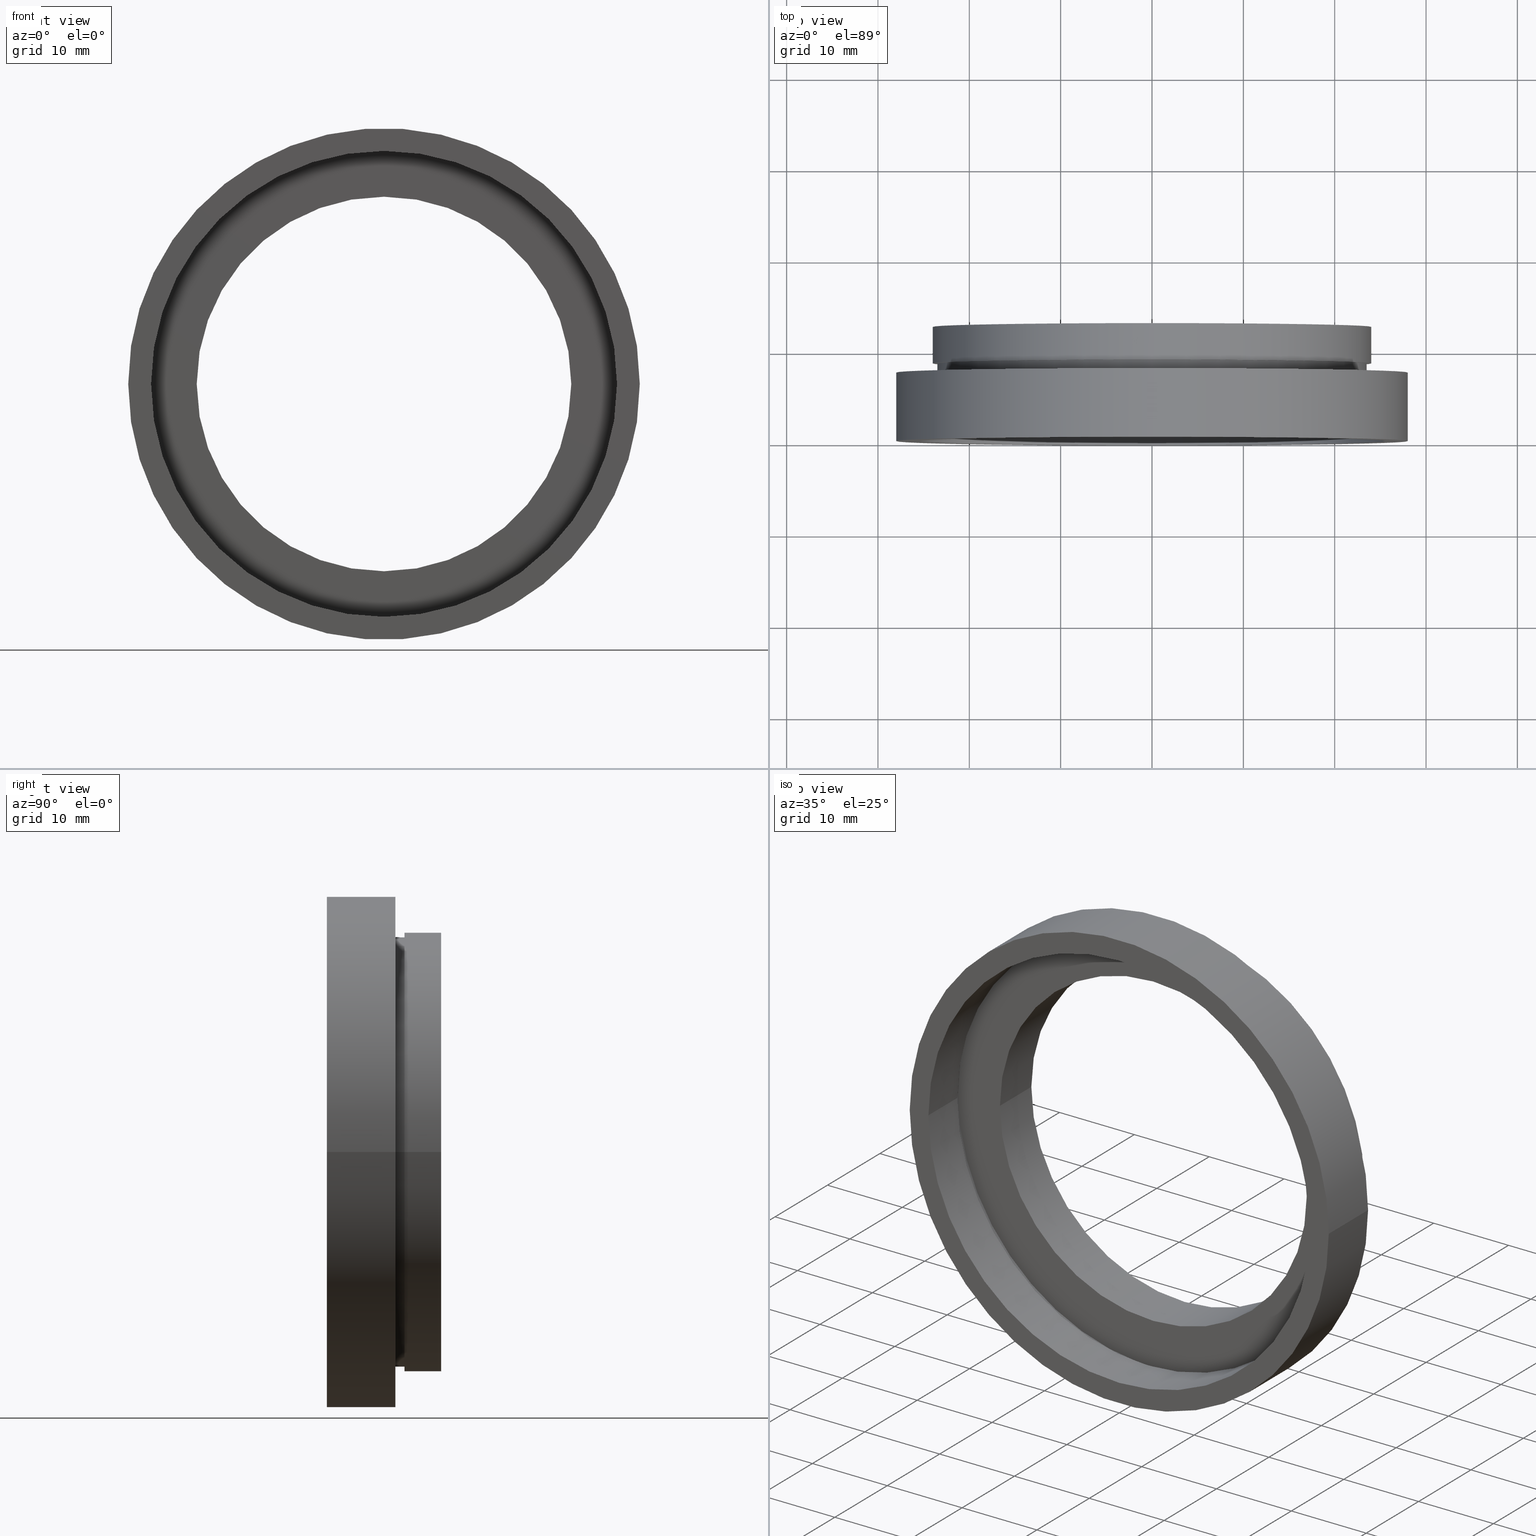
[diagram: canonical four-view strip — front | top / right | iso, engineering-drawing reading convention]
A machine part, canonical four-view strip (front | top / right | iso — engineering-drawing reading convention). The complete STEP part file that produces these views, byte-faithful:
ISO-10303-21;
HEADER;
FILE_DESCRIPTION (( 'STEP AP214' ),
    '1' );
FILE_NAME ('504006.STEP',
    '2019-09-30T06:35:52',
    ( 'user' ),
    ( '΢���й�' ),
    'SwSTEP 2.0',
    'SolidWorks 2016',
    '' );
FILE_SCHEMA (( 'AUTOMOTIVE_DESIGN' ));
ENDSEC;

DATA;
#1 = PLANE ( 'NONE',  #36 ) ;
#2 = ADVANCED_FACE ( 'NONE', ( #270 ), #376, .F. ) ;
#3 = EDGE_CURVE ( 'NONE', #508, #568, #146, .T. ) ;
#4 = AXIS2_PLACEMENT_3D ( 'NONE', #537, #546, #289 ) ;
#5 = ORIENTED_EDGE ( 'NONE', *, *, #396, .F. ) ;
#6 = VERTEX_POINT ( 'NONE', #135 ) ;
#7 = EDGE_LOOP ( 'NONE', ( #294, #451, #469, #536 ) ) ;
#8 = CYLINDRICAL_SURFACE ( 'NONE', #502, 20.50000000000000000 ) ;
#9 =( NAMED_UNIT ( * ) SI_UNIT ( $, .STERADIAN. ) SOLID_ANGLE_UNIT ( ) );
#10 = CARTESIAN_POINT ( 'NONE',  ( 0.0000000000000000000, 16.88601823708207700, 0.0000000000000000000 ) ) ;
#11 = CARTESIAN_POINT ( 'NONE',  ( -23.50000000000000400, 16.88601823708207300, 0.0000000000000000000 ) ) ;
#12 = AXIS2_PLACEMENT_3D ( 'NONE', #605, #163, #102 ) ;
#13 = COLOUR_RGB ( '',1.000000000000000000, 1.000000000000000000, 1.000000000000000000 ) ;
#14 = FILL_AREA_STYLE ('',( #353 ) ) ;
#15 =( GEOMETRIC_REPRESENTATION_CONTEXT ( 3 ) GLOBAL_UNCERTAINTY_ASSIGNED_CONTEXT ( ( #55 ) ) GLOBAL_UNIT_ASSIGNED_CONTEXT ( ( #35, #439, #323 ) ) REPRESENTATION_CONTEXT ( 'NONE', 'WORKASPACE' ) );
#16 = CARTESIAN_POINT ( 'NONE',  ( 0.0000000000000000000, 16.88601823708207700, 0.0000000000000000000 ) ) ;
#17 = ORIENTED_EDGE ( 'NONE', *, *, #617, .F. ) ;
#18 = DIRECTION ( 'NONE',  ( -1.000000000000000000, -1.360567432138672100E-016, 0.0000000000000000000 ) ) ;
#19 = ORIENTED_EDGE ( 'NONE', *, *, #156, .T. ) ;
#20 =( NAMED_UNIT ( * ) SI_UNIT ( $, .STERADIAN. ) SOLID_ANGLE_UNIT ( ) );
#21 =( NAMED_UNIT ( * ) PLANE_ANGLE_UNIT ( ) SI_UNIT ( $, .RADIAN. ) );
#22 =( LENGTH_UNIT ( ) NAMED_UNIT ( * ) SI_UNIT ( .MILLI., .METRE. ) );
#23 = FACE_OUTER_BOUND ( 'NONE', #52, .T. ) ;
#24 =( GEOMETRIC_REPRESENTATION_CONTEXT ( 3 ) GLOBAL_UNCERTAINTY_ASSIGNED_CONTEXT ( ( #213 ) ) GLOBAL_UNIT_ASSIGNED_CONTEXT ( ( #498, #21, #307 ) ) REPRESENTATION_CONTEXT ( 'NONE', 'WORKASPACE' ) );
#25 =( NAMED_UNIT ( * ) PLANE_ANGLE_UNIT ( ) SI_UNIT ( $, .RADIAN. ) );
#26 = SURFACE_STYLE_USAGE ( .BOTH. , #30 ) ;
#27 = CYLINDRICAL_SURFACE ( 'NONE', #460, 24.00000000000000400 ) ;
#28 =( NAMED_UNIT ( * ) SI_UNIT ( $, .STERADIAN. ) SOLID_ANGLE_UNIT ( ) );
#29 = EDGE_CURVE ( 'NONE', #568, #508, #371, .T. ) ;
#30 = SURFACE_SIDE_STYLE ('',( #492 ) ) ;
#31 = CARTESIAN_POINT ( 'NONE',  ( 25.50000000000000400, 5.499999999999998200, 3.122849337825751000E-015 ) ) ;
#32 = SURFACE_STYLE_FILL_AREA ( #57 ) ;
#33 = FILL_AREA_STYLE_COLOUR ( '', #56 ) ;
#34 = AXIS2_PLACEMENT_3D ( 'NONE', #286, #553, #45 ) ;
#35 =( LENGTH_UNIT ( ) NAMED_UNIT ( * ) SI_UNIT ( .MILLI., .METRE. ) );
#36 = AXIS2_PLACEMENT_3D ( 'NONE', #585, #193, #191 ) ;
#37 = EDGE_CURVE ( 'NONE', #453, #356, #370, .T. ) ;
#38 = CARTESIAN_POINT ( 'NONE',  ( 0.0000000000000000000, 16.88601823708207700, 0.0000000000000000000 ) ) ;
#39 = FILL_AREA_STYLE_COLOUR ( '', #161 ) ;
#40 = CARTESIAN_POINT ( 'NONE',  ( -24.00000000000000400, 12.49999999999999300, 0.0000000000000000000 ) ) ;
#41 = SURFACE_STYLE_USAGE ( .BOTH. , #197 ) ;
#42 = DIRECTION ( 'NONE',  ( -1.224646799147351000E-016, 1.000000000000000000, -0.0000000000000000000 ) ) ;
#43 = CARTESIAN_POINT ( 'NONE',  ( 25.50000000000000400, 16.88601823708208000, 3.122849337825751000E-015 ) ) ;
#44 = FILL_AREA_STYLE_COLOUR ( '', #49 ) ;
#45 = DIRECTION ( 'NONE',  ( -1.000000000000000000, -1.329290019905599200E-016, 0.0000000000000000000 ) ) ;
#46 = EDGE_LOOP ( 'NONE', ( #277, #493 ) ) ;
#47 = EDGE_LOOP ( 'NONE', ( #231, #178, #200, #531 ) ) ;
#48 = ADVANCED_FACE ( 'NONE', ( #136, #372 ), #556, .F. ) ;
#49 = COLOUR_RGB ( '',1.000000000000000000, 1.000000000000000000, 1.000000000000000000 ) ;
#50 = CARTESIAN_POINT ( 'NONE',  ( 0.0000000000000000000, 16.88601823708207700, 0.0000000000000000000 ) ) ;
#51 = PRESENTATION_LAYER_ASSIGNMENT (  '', '', ( #311 ) ) ;
#52 = EDGE_LOOP ( 'NONE', ( #507, #293, #326, #429 ) ) ;
#53 = CARTESIAN_POINT ( 'NONE',  ( 28.00000000000000400, 7.500000000000000000, 3.429011037612589700E-015 ) ) ;
#54 = DIRECTION ( 'NONE',  ( -1.000000000000000000, -1.360567432138672100E-016, 0.0000000000000000000 ) ) ;
#55 = UNCERTAINTY_MEASURE_WITH_UNIT (LENGTH_MEASURE( 1.000000000000000100E-005 ), #35, 'distance_accuracy_value', 'NONE');
#56 = COLOUR_RGB ( '',1.000000000000000000, 1.000000000000000000, 1.000000000000000000 ) ;
#57 = FILL_AREA_STYLE ('',( #187 ) ) ;
#58 = FILL_AREA_STYLE ('',( #33 ) ) ;
#59 = VERTEX_POINT ( 'NONE', #226 ) ;
#60 = ORIENTED_EDGE ( 'NONE', *, *, #252, .T. ) ;
#61 = CARTESIAN_POINT ( 'NONE',  ( -24.00000000000000400, 16.88601823708207300, 0.0000000000000000000 ) ) ;
#62 = VERTEX_POINT ( 'NONE', #295 ) ;
#63 = AXIS2_PLACEMENT_3D ( 'NONE', #544, #304, #284 ) ;
#64 =( LENGTH_UNIT ( ) NAMED_UNIT ( * ) SI_UNIT ( .MILLI., .METRE. ) );
#65 = EDGE_CURVE ( 'NONE', #209, #210, #195, .T. ) ;
#66 = AXIS2_PLACEMENT_3D ( 'NONE', #170, #271, #241 ) ;
#67 = SURFACE_STYLE_USAGE ( .BOTH. , #348 ) ;
#68 =( NAMED_UNIT ( * ) PLANE_ANGLE_UNIT ( ) SI_UNIT ( $, .RADIAN. ) );
#69 = ORIENTED_EDGE ( 'NONE', *, *, #156, .F. ) ;
#70 = CARTESIAN_POINT ( 'NONE',  ( 20.50000000000000000, 16.88601823708208000, 2.510525938252074500E-015 ) ) ;
#71 = DIRECTION ( 'NONE',  ( -1.000000000000000000, -1.224646799147351200E-016, 0.0000000000000000000 ) ) ;
#72 = CARTESIAN_POINT ( 'NONE',  ( 23.50000000000000400, 7.499999999999999100, 2.877919977996280700E-015 ) ) ;
#73 = UNCERTAINTY_MEASURE_WITH_UNIT (LENGTH_MEASURE( 1.000000000000000100E-005 ), #64, 'distance_accuracy_value', 'NONE');
#74 = AXIS2_PLACEMENT_3D ( 'NONE', #16, #139, #18 ) ;
#75 = DIRECTION ( 'NONE',  ( -1.000000000000000000, -1.329290019905599200E-016, 0.0000000000000000000 ) ) ;
#76 = ORIENTED_EDGE ( 'NONE', *, *, #192, .T. ) ;
#77 = DIRECTION ( 'NONE',  ( -1.000000000000000000, -1.476360405086644100E-016, 0.0000000000000000000 ) ) ;
#78 = SURFACE_STYLE_FILL_AREA ( #443 ) ;
#79 = CARTESIAN_POINT ( 'NONE',  ( 1.271920398992858200E-015, 6.499999999999995600, 0.0000000000000000000 ) ) ;
#80 = DIRECTION ( 'NONE',  ( -1.224646799147351000E-016, 1.000000000000000000, -0.0000000000000000000 ) ) ;
#81 = ORIENTED_EDGE ( 'NONE', *, *, #485, .F. ) ;
#82 = CARTESIAN_POINT ( 'NONE',  ( 1.394385078907593400E-015, 5.499999999999994700, 0.0000000000000000000 ) ) ;
#83 = ORIENTED_EDGE ( 'NONE', *, *, #313, .T. ) ;
#84 = DIRECTION ( 'NONE',  ( -1.224646799147351000E-016, 1.000000000000000000, -0.0000000000000000000 ) ) ;
#85 = DIRECTION ( 'NONE',  ( -1.000000000000000000, -1.445602896647338900E-016, 0.0000000000000000000 ) ) ;
#86 = FILL_AREA_STYLE_COLOUR ( '', #120 ) ;
#87 = DIRECTION ( 'NONE',  ( -1.224646799147351000E-016, 1.000000000000000000, -0.0000000000000000000 ) ) ;
#88 = DIRECTION ( 'NONE',  ( -1.000000000000000000, -1.476360405086644100E-016, 0.0000000000000000000 ) ) ;
#89 = AXIS2_PLACEMENT_3D ( 'NONE', #541, #87, #171 ) ;
#90 = VERTEX_POINT ( 'NONE', #40 ) ;
#91 = ADVANCED_FACE ( 'NONE', ( #382, #283 ), #216, .F. ) ;
#92 = CARTESIAN_POINT ( 'NONE',  ( 24.00000000000000400, 16.88601823708208000, 2.939152317953648300E-015 ) ) ;
#93 = VECTOR ( 'NONE', #589, 1000.000000000000000 ) ;
#94 = CIRCLE ( 'NONE', #151, 24.00000000000000400 ) ;
#95 = AXIS2_PLACEMENT_3D ( 'NONE', #251, #603, #409 ) ;
#96 = FACE_BOUND ( 'NONE', #259, .T. ) ;
#97 = EDGE_CURVE ( 'NONE', #596, #442, #280, .T. ) ;
#98 = ORIENTED_EDGE ( 'NONE', *, *, #97, .T. ) ;
#99 = DIRECTION ( 'NONE',  ( -1.224646799147351000E-016, 1.000000000000000000, -0.0000000000000000000 ) ) ;
#100 = VECTOR ( 'NONE', #84, 1000.000000000000000 ) ;
#101 = LINE ( 'NONE', #11, #100 ) ;
#102 = DIRECTION ( 'NONE',  ( -1.000000000000000000, -1.239088197126290600E-016, 0.0000000000000000000 ) ) ;
#103 = DIRECTION ( 'NONE',  ( -1.000000000000000000, -1.445602896647338900E-016, 0.0000000000000000000 ) ) ;
#104 = AXIS2_PLACEMENT_3D ( 'NONE', #148, #447, #527 ) ;
#105 = EDGE_LOOP ( 'NONE', ( #476, #559, #19, #112 ) ) ;
#106 = AXIS2_PLACEMENT_3D ( 'NONE', #488, #580, #257 ) ;
#107 = FACE_OUTER_BOUND ( 'NONE', #237, .T. ) ;
#108 = DIRECTION ( 'NONE',  ( -1.224646799147351000E-016, 1.000000000000000000, -0.0000000000000000000 ) ) ;
#109 = CIRCLE ( 'NONE', #122, 25.50000000000000000 ) ;
#110 = EDGE_CURVE ( 'NONE', #336, #59, #281, .T. ) ;
#111 = ORIENTED_EDGE ( 'NONE', *, *, #547, .F. ) ;
#112 = ORIENTED_EDGE ( 'NONE', *, *, #228, .T. ) ;
#113 = FILL_AREA_STYLE ('',( #239 ) ) ;
#114 = CYLINDRICAL_SURFACE ( 'NONE', #517, 28.00000000000000400 ) ;
#115 = DIRECTION ( 'NONE',  ( -1.000000000000000000, -1.329290019905599200E-016, 0.0000000000000000000 ) ) ;
#116 = AXIS2_PLACEMENT_3D ( 'NONE', #526, #490, #606 ) ;
#117 = SURFACE_SIDE_STYLE ('',( #32 ) ) ;
#118 = FACE_BOUND ( 'NONE', #563, .T. ) ;
#119 = CARTESIAN_POINT ( 'NONE',  ( 24.00000000000000400, 8.500000000000000000, 2.939152317953648300E-015 ) ) ;
#120 = COLOUR_RGB ( '',1.000000000000000000, 1.000000000000000000, 1.000000000000000000 ) ;
#121 = APPLICATION_CONTEXT ( 'automotive_design' ) ;
#122 = AXIS2_PLACEMENT_3D ( 'NONE', #496, #145, #71 ) ;
#123 = VERTEX_POINT ( 'NONE', #223 ) ;
#124 = EDGE_CURVE ( 'NONE', #508, #317, #393, .T. ) ;
#125 = VERTEX_POINT ( 'NONE', #417 ) ;
#126 = ORIENTED_EDGE ( 'NONE', *, *, #279, .T. ) ;
#127 = APPLICATION_CONTEXT ( 'automotive_design' ) ;
#128 = CYLINDRICAL_SURFACE ( 'NONE', #155, 26.10000000000000100 ) ;
#129 = CIRCLE ( 'NONE', #63, 26.10000000000000100 ) ;
#130 = DIRECTION ( 'NONE',  ( -1.224646799147351000E-016, 1.000000000000000000, -0.0000000000000000000 ) ) ;
#131 = FACE_OUTER_BOUND ( 'NONE', #7, .T. ) ;
#132 = CARTESIAN_POINT ( 'NONE',  ( 0.0000000000000000000, 16.88601823708207700, 0.0000000000000000000 ) ) ;
#133 = DIRECTION ( 'NONE',  ( -1.224646799147351000E-016, 1.000000000000000000, -0.0000000000000000000 ) ) ;
#134 = AXIS2_PLACEMENT_3D ( 'NONE', #82, #302, #75 ) ;
#135 = CARTESIAN_POINT ( 'NONE',  ( 20.50000000000000000, 6.500000000000000000, 2.510525938252074500E-015 ) ) ;
#136 = FACE_BOUND ( 'NONE', #521, .T. ) ;
#137 = LINE ( 'NONE', #545, #390 ) ;
#138 = ADVANCED_FACE ( 'NONE', ( #23 ), #406, .F. ) ;
#139 = DIRECTION ( 'NONE',  ( -1.224646799147351000E-016, 1.000000000000000000, -0.0000000000000000000 ) ) ;
#140 =( LENGTH_UNIT ( ) NAMED_UNIT ( * ) SI_UNIT ( .MILLI., .METRE. ) );
#141 = PRODUCT_DEFINITION ( 'δ֪', '', #167, #560 ) ;
#142 = VERTEX_POINT ( 'NONE', #212 ) ;
#143 = EDGE_CURVE ( 'NONE', #317, #534, #392, .T. ) ;
#144 = ORIENTED_EDGE ( 'NONE', *, *, #362, .F. ) ;
#145 = DIRECTION ( 'NONE',  ( -1.224646799147351000E-016, 1.000000000000000000, -0.0000000000000000000 ) ) ;
#146 = CIRCLE ( 'NONE', #464, 23.50000000000000400 ) ;
#147 = PRODUCT_DEFINITION_SHAPE ( 'NONE', 'NONE',  #141 ) ;
#148 = CARTESIAN_POINT ( 'NONE',  ( 25.50000000000000400, 5.499999999999999100, 0.0000000000000000000 ) ) ;
#149 = DIRECTION ( 'NONE',  ( -1.000000000000000000, -1.239088197126290600E-016, 0.0000000000000000000 ) ) ;
#150 = FACE_OUTER_BOUND ( 'NONE', #46, .T. ) ;
#151 = AXIS2_PLACEMENT_3D ( 'NONE', #495, #340, #85 ) ;
#152 = CARTESIAN_POINT ( 'NONE',  ( 26.10000000000000100, 16.88601823708208000, 3.196328145774592300E-015 ) ) ;
#153 = FACE_OUTER_BOUND ( 'NONE', #105, .T. ) ;
#154 = EDGE_LOOP ( 'NONE', ( #478, #81, #379, #611 ) ) ;
#155 = AXIS2_PLACEMENT_3D ( 'NONE', #467, #269, #274 ) ;
#156 = EDGE_CURVE ( 'NONE', #59, #210, #137, .T. ) ;
#157 = CIRCLE ( 'NONE', #220, 20.50000000000000000 ) ;
#158 = CYLINDRICAL_SURFACE ( 'NONE', #89, 25.50000000000000400 ) ;
#159 = PRESENTATION_STYLE_ASSIGNMENT (( #245 ) ) ;
#160 = CARTESIAN_POINT ( 'NONE',  ( 1.026991039163387900E-015, 8.499999999999996400, 0.0000000000000000000 ) ) ;
#161 = COLOUR_RGB ( '',1.000000000000000000, 1.000000000000000000, 1.000000000000000000 ) ;
#162 = LINE ( 'NONE', #43, #204 ) ;
#163 = DIRECTION ( 'NONE',  ( -1.224646799147351000E-016, 1.000000000000000000, -0.0000000000000000000 ) ) ;
#164 = STYLED_ITEM ( 'NONE', ( #322 ), #459 ) ;
#165 = EDGE_LOOP ( 'NONE', ( #306, #505 ) ) ;
#166 = ORIENTED_EDGE ( 'NONE', *, *, #3, .F. ) ;
#167 = PRODUCT_DEFINITION_FORMATION_WITH_SPECIFIED_SOURCE ( '�κ�', '', #608, .NOT_KNOWN. ) ;
#168 = CARTESIAN_POINT ( 'NONE',  ( 23.50000000000000400, 8.500000000000000000, 2.877919977996280700E-015 ) ) ;
#169 = EDGE_CURVE ( 'NONE', #394, #596, #235, .T. ) ;
#170 = CARTESIAN_POINT ( 'NONE',  ( 1.149455719078123100E-015, 7.499999999999996400, 0.0000000000000000000 ) ) ;
#171 = DIRECTION ( 'NONE',  ( -1.000000000000000000, -1.360567432138672100E-016, 0.0000000000000000000 ) ) ;
#172 = SURFACE_STYLE_FILL_AREA ( #586 ) ;
#173 = VECTOR ( 'NONE', #218, 1000.000000000000000 ) ;
#174 = CARTESIAN_POINT ( 'NONE',  ( 24.00000000000000400, 12.50000000000000000, 2.939152317953648300E-015 ) ) ;
#175 = DIRECTION ( 'NONE',  ( -1.000000000000000000, -8.462065736472229800E-017, 0.0000000000000000000 ) ) ;
#176 = CIRCLE ( 'NONE', #432, 20.50000000000000000 ) ;
#177 = DIRECTION ( 'NONE',  ( -1.224646799147351000E-016, 1.000000000000000000, -0.0000000000000000000 ) ) ;
#178 = ORIENTED_EDGE ( 'NONE', *, *, #169, .T. ) ;
#179 = CIRCLE ( 'NONE', #512, 25.50000000000000400 ) ;
#180 = PLANE ( 'NONE',  #116 ) ;
#181 = FACE_OUTER_BOUND ( 'NONE', #338, .T. ) ;
#182 = DIRECTION ( 'NONE',  ( -1.224646799147351000E-016, 1.000000000000000000, -0.0000000000000000000 ) ) ;
#183 = ADVANCED_FACE ( 'NONE', ( #408 ), #360, .T. ) ;
#184 = ORIENTED_EDGE ( 'NONE', *, *, #455, .T. ) ;
#185 = STYLED_ITEM ( 'NONE', ( #333 ), #621 ) ;
#186 = ORIENTED_EDGE ( 'NONE', *, *, #265, .T. ) ;
#187 = FILL_AREA_STYLE_COLOUR ( '', #13 ) ;
#188 = ADVANCED_FACE ( 'NONE', ( #378, #401 ), #597, .F. ) ;
#189 = AXIS2_PLACEMENT_3D ( 'NONE', #300, #207, #198 ) ;
#190 = EDGE_CURVE ( 'NONE', #394, #142, #361, .T. ) ;
#191 = DIRECTION ( 'NONE',  ( -1.000000000000000000, -1.224646799147351000E-016, 0.0000000000000000000 ) ) ;
#192 = EDGE_CURVE ( 'NONE', #6, #123, #398, .T. ) ;
#193 = DIRECTION ( 'NONE',  ( -1.224646799147351000E-016, 1.000000000000000000, 0.0000000000000000000 ) ) ;
#194 = FACE_OUTER_BOUND ( 'NONE', #238, .T. ) ;
#195 = CIRCLE ( 'NONE', #592, 25.50000000000000400 ) ;
#196 = VECTOR ( 'NONE', #233, 1000.000000000000000 ) ;
#197 = SURFACE_SIDE_STYLE ('',( #172 ) ) ;
#198 = DIRECTION ( 'NONE',  ( -1.000000000000000000, -1.239088197126290600E-016, 0.0000000000000000000 ) ) ;
#199 = PRESENTATION_LAYER_ASSIGNMENT (  '', '', ( #164 ) ) ;
#200 = ORIENTED_EDGE ( 'NONE', *, *, #455, .F. ) ;
#201 = ORIENTED_EDGE ( 'NONE', *, *, #222, .F. ) ;
#202 = CARTESIAN_POINT ( 'NONE',  ( -28.00000000000000400, 16.88601823708207300, 0.0000000000000000000 ) ) ;
#203 = PRODUCT_RELATED_PRODUCT_CATEGORY ( 'part', '', ( #608 ) ) ;
#204 = VECTOR ( 'NONE', #414, 1000.000000000000000 ) ;
#205 = EDGE_CURVE ( 'NONE', #336, #209, #162, .T. ) ;
#206 = CARTESIAN_POINT ( 'NONE',  ( 5.371323195044473300E-016, 12.49999999999999600, 0.0000000000000000000 ) ) ;
#207 = DIRECTION ( 'NONE',  ( -1.224646799147351000E-016, 1.000000000000000000, -0.0000000000000000000 ) ) ;
#208 = DIRECTION ( 'NONE',  ( -1.000000000000000000, -1.224646799147351000E-016, 0.0000000000000000000 ) ) ;
#209 = VERTEX_POINT ( 'NONE', #31 ) ;
#210 = VERTEX_POINT ( 'NONE', #619 ) ;
#211 = DIRECTION ( 'NONE',  ( -1.000000000000000000, -1.476360405086644100E-016, 0.0000000000000000000 ) ) ;
#212 = CARTESIAN_POINT ( 'NONE',  ( -27.99999999999999600, -6.898457989566196800E-015, 0.0000000000000000000 ) ) ;
#213 = UNCERTAINTY_MEASURE_WITH_UNIT (LENGTH_MEASURE( 1.000000000000000100E-005 ), #498, 'distance_accuracy_value', 'NONE');
#214 = ORIENTED_EDGE ( 'NONE', *, *, #485, .T. ) ;
#215 = LINE ( 'NONE', #349, #332 ) ;
#216 = PLANE ( 'NONE',  #225 ) ;
#217 = CARTESIAN_POINT ( 'NONE',  ( -24.00000000000000400, 8.499999999999992900, 0.0000000000000000000 ) ) ;
#218 = DIRECTION ( 'NONE',  ( -1.224646799147351000E-016, 1.000000000000000000, -0.0000000000000000000 ) ) ;
#219 = PRESENTATION_LAYER_ASSIGNMENT (  '', '', ( #185 ) ) ;
#220 = AXIS2_PLACEMENT_3D ( 'NONE', #325, #452, #261 ) ;
#221 = CARTESIAN_POINT ( 'NONE',  ( 5.371323195044473300E-016, 12.49999999999999600, 0.0000000000000000000 ) ) ;
#222 = EDGE_CURVE ( 'NONE', #534, #317, #351, .T. ) ;
#223 = CARTESIAN_POINT ( 'NONE',  ( 20.50000000000000000, 12.49999999999999800, 2.510525938252074500E-015 ) ) ;
#224 = ORIENTED_EDGE ( 'NONE', *, *, #65, .T. ) ;
#225 = AXIS2_PLACEMENT_3D ( 'NONE', #497, #454, #208 ) ;
#226 = CARTESIAN_POINT ( 'NONE',  ( -25.49999999999999600, -6.592296289779359700E-015, 0.0000000000000000000 ) ) ;
#227 =( NAMED_UNIT ( * ) PLANE_ANGLE_UNIT ( ) SI_UNIT ( $, .RADIAN. ) );
#228 = EDGE_CURVE ( 'NONE', #210, #209, #179, .T. ) ;
#229 = VECTOR ( 'NONE', #255, 1000.000000000000000 ) ;
#230 = DIRECTION ( 'NONE',  ( -1.224646799147351000E-016, 1.000000000000000000, -0.0000000000000000000 ) ) ;
#231 = ORIENTED_EDGE ( 'NONE', *, *, #362, .T. ) ;
#232 = MECHANICAL_DESIGN_GEOMETRIC_PRESENTATION_REPRESENTATION (  '', ( #164 ), #262 ) ;
#233 = DIRECTION ( 'NONE',  ( -1.224646799147351000E-016, 1.000000000000000000, -0.0000000000000000000 ) ) ;
#234 = EDGE_CURVE ( 'NONE', #125, #62, #215, .T. ) ;
#235 = LINE ( 'NONE', #256, #399 ) ;
#236 = ADVANCED_FACE ( 'NONE', ( #384 ), #483, .T. ) ;
#237 = EDGE_LOOP ( 'NONE', ( #426, #590, #462, #604 ) ) ;
#238 = EDGE_LOOP ( 'NONE', ( #554, #249 ) ) ;
#239 = FILL_AREA_STYLE_COLOUR ( '', #341 ) ;
#240 = DIRECTION ( 'NONE',  ( -1.224646799147351000E-016, 1.000000000000000000, -0.0000000000000000000 ) ) ;
#241 = DIRECTION ( 'NONE',  ( -1.000000000000000000, -1.239088197126290600E-016, 0.0000000000000000000 ) ) ;
#242 =( LENGTH_UNIT ( ) NAMED_UNIT ( * ) SI_UNIT ( .MILLI., .METRE. ) );
#243 = SURFACE_STYLE_USAGE ( .BOTH. , #117 ) ;
#244 = CYLINDRICAL_SURFACE ( 'NONE', #74, 25.50000000000000400 ) ;
#245 = SURFACE_STYLE_USAGE ( .BOTH. , #358 ) ;
#246 = AXIS2_PLACEMENT_3D ( 'NONE', #533, #266, #211 ) ;
#247 = ORIENTED_EDGE ( 'NONE', *, *, #254, .T. ) ;
#248 = CARTESIAN_POINT ( 'NONE',  ( -20.50000000000000000, 16.88601823708207300, 0.0000000000000000000 ) ) ;
#249 = ORIENTED_EDGE ( 'NONE', *, *, #583, .F. ) ;
#250 = ORIENTED_EDGE ( 'NONE', *, *, #205, .T. ) ;
#251 = CARTESIAN_POINT ( 'NONE',  ( 2.067940818438636500E-015, -3.469446951953614200E-015, 0.0000000000000000000 ) ) ;
#252 = EDGE_CURVE ( 'NONE', #90, #532, #296, .T. ) ;
#253 = AXIS2_PLACEMENT_3D ( 'NONE', #561, #240, #591 ) ;
#254 = EDGE_CURVE ( 'NONE', #356, #532, #511, .T. ) ;
#255 = DIRECTION ( 'NONE',  ( -1.224646799147351000E-016, 1.000000000000000000, -0.0000000000000000000 ) ) ;
#256 = CARTESIAN_POINT ( 'NONE',  ( 28.00000000000000400, 16.88601823708208000, 3.429011037612589700E-015 ) ) ;
#257 = DIRECTION ( 'NONE',  ( 1.000000000000000000, 0.0000000000000000000, 0.0000000000000000000 ) ) ;
#258 = SURFACE_SIDE_STYLE ('',( #569 ) ) ;
#259 = EDGE_LOOP ( 'NONE', ( #594, #577 ) ) ;
#260 = DIRECTION ( 'NONE',  ( -1.000000000000000000, -8.462065736472229800E-017, 0.0000000000000000000 ) ) ;
#261 = DIRECTION ( 'NONE',  ( -1.000000000000000000, -1.269309860470834500E-016, 0.0000000000000000000 ) ) ;
#262 =( GEOMETRIC_REPRESENTATION_CONTEXT ( 3 ) GLOBAL_UNCERTAINTY_ASSIGNED_CONTEXT ( ( #444 ) ) GLOBAL_UNIT_ASSIGNED_CONTEXT ( ( #22, #68, #28 ) ) REPRESENTATION_CONTEXT ( 'NONE', 'WORKASPACE' ) );
#263 = CARTESIAN_POINT ( 'NONE',  ( 25.50000000000000400, -3.465976141278692900E-016, 3.122849337825751000E-015 ) ) ;
#264 = CYLINDRICAL_SURFACE ( 'NONE', #246, 23.50000000000000400 ) ;
#265 = EDGE_CURVE ( 'NONE', #356, #453, #287, .T. ) ;
#266 = DIRECTION ( 'NONE',  ( -1.224646799147351000E-016, 1.000000000000000000, -0.0000000000000000000 ) ) ;
#267 = CARTESIAN_POINT ( 'NONE',  ( 1.394385078907593400E-015, 5.499999999999994700, 0.0000000000000000000 ) ) ;
#268 = EDGE_LOOP ( 'NONE', ( #407, #515 ) ) ;
#269 = DIRECTION ( 'NONE',  ( -1.224646799147351000E-016, 1.000000000000000000, -0.0000000000000000000 ) ) ;
#270 = FACE_OUTER_BOUND ( 'NONE', #610, .T. ) ;
#271 = DIRECTION ( 'NONE',  ( -1.224646799147351000E-016, 1.000000000000000000, -0.0000000000000000000 ) ) ;
#272 = SURFACE_STYLE_USAGE ( .BOTH. , #258 ) ;
#273 = CARTESIAN_POINT ( 'NONE',  ( 2.067940818438636500E-015, -3.469446951953614200E-015, 0.0000000000000000000 ) ) ;
#274 = DIRECTION ( 'NONE',  ( -1.000000000000000000, -1.329290019905599200E-016, 0.0000000000000000000 ) ) ;
#275 = ADVANCED_FACE ( 'NONE', ( #288, #538 ), #1, .F. ) ;
#276 = ORIENTED_EDGE ( 'NONE', *, *, #190, .F. ) ;
#277 = ORIENTED_EDGE ( 'NONE', *, *, #319, .T. ) ;
#278 = AXIS2_PLACEMENT_3D ( 'NONE', #79, #334, #115 ) ;
#279 = EDGE_CURVE ( 'NONE', #568, #534, #101, .T. ) ;
#280 = CIRCLE ( 'NONE', #66, 28.00000000000000400 ) ;
#281 = CIRCLE ( 'NONE', #253, 25.50000000000000000 ) ;
#282 = AXIS2_PLACEMENT_3D ( 'NONE', #273, #182, #463 ) ;
#283 = FACE_BOUND ( 'NONE', #387, .T. ) ;
#284 = DIRECTION ( 'NONE',  ( -1.000000000000000000, -1.329290019905599200E-016, 0.0000000000000000000 ) ) ;
#285 = EDGE_CURVE ( 'NONE', #123, #337, #427, .T. ) ;
#286 = CARTESIAN_POINT ( 'NONE',  ( 1.271920398992858200E-015, 6.499999999999995600, 0.0000000000000000000 ) ) ;
#287 = CIRCLE ( 'NONE', #555, 24.00000000000000400 ) ;
#288 = FACE_OUTER_BOUND ( 'NONE', #268, .T. ) ;
#289 = DIRECTION ( 'NONE',  ( 1.000000000000000000, 1.224646799147351000E-016, 0.0000000000000000000 ) ) ;
#290 = STYLED_ITEM ( 'NONE', ( #364 ), #473 ) ;
#291 = ORIENTED_EDGE ( 'NONE', *, *, #617, .T. ) ;
#292 = STYLED_ITEM ( 'NONE', ( #159 ), #2 ) ;
#293 = ORIENTED_EDGE ( 'NONE', *, *, #319, .F. ) ;
#294 = ORIENTED_EDGE ( 'NONE', *, *, #169, .F. ) ;
#295 = CARTESIAN_POINT ( 'NONE',  ( -26.10000000000000100, 6.499999999999992000, 0.0000000000000000000 ) ) ;
#296 = CIRCLE ( 'NONE', #489, 24.00000000000000400 ) ;
#297 = CARTESIAN_POINT ( 'NONE',  ( -23.50000000000000400, 7.499999999999993800, 0.0000000000000000000 ) ) ;
#298 = CIRCLE ( 'NONE', #34, 26.10000000000000100 ) ;
#299 = CARTESIAN_POINT ( 'NONE',  ( -20.50000000000000000, 6.499999999999994700, 0.0000000000000000000 ) ) ;
#300 = CARTESIAN_POINT ( 'NONE',  ( 0.0000000000000000000, 16.88601823708207700, 0.0000000000000000000 ) ) ;
#301 = DIRECTION ( 'NONE',  ( -1.224646799147351000E-016, 1.000000000000000000, -0.0000000000000000000 ) ) ;
#302 = DIRECTION ( 'NONE',  ( -1.224646799147351000E-016, 1.000000000000000000, -0.0000000000000000000 ) ) ;
#303 = ORIENTED_EDGE ( 'NONE', *, *, #389, .F. ) ;
#304 = DIRECTION ( 'NONE',  ( -1.224646799147351000E-016, 1.000000000000000000, -0.0000000000000000000 ) ) ;
#305 = EDGE_LOOP ( 'NONE', ( #347, #250, #224, #69 ) ) ;
#306 = ORIENTED_EDGE ( 'NONE', *, *, #222, .T. ) ;
#307 =( NAMED_UNIT ( * ) SI_UNIT ( $, .STERADIAN. ) SOLID_ANGLE_UNIT ( ) );
#308 = DIRECTION ( 'NONE',  ( -1.224646799147351000E-016, 1.000000000000000000, -0.0000000000000000000 ) ) ;
#309 = DIRECTION ( 'NONE',  ( -1.224646799147351000E-016, 1.000000000000000000, -0.0000000000000000000 ) ) ;
#310 = FACE_OUTER_BOUND ( 'NONE', #154, .T. ) ;
#311 = STYLED_ITEM ( 'NONE', ( #623 ), #433 ) ;
#312 = CARTESIAN_POINT ( 'NONE',  ( 26.10000000000000100, 5.499999999999998200, 3.196328145774592300E-015 ) ) ;
#313 = EDGE_CURVE ( 'NONE', #453, #90, #539, .T. ) ;
#314 = CARTESIAN_POINT ( 'NONE',  ( 1.394385078907593400E-015, 5.499999999999994700, 0.0000000000000000000 ) ) ;
#315 = AXIS2_PLACEMENT_3D ( 'NONE', #484, #615, #77 ) ;
#316 = DIRECTION ( 'NONE',  ( -1.224646799147351000E-016, 1.000000000000000000, -0.0000000000000000000 ) ) ;
#317 = VERTEX_POINT ( 'NONE', #168 ) ;
#318 = CARTESIAN_POINT ( 'NONE',  ( 28.00000000000000400, -4.043591434103126100E-017, 3.429011037612589700E-015 ) ) ;
#319 = EDGE_CURVE ( 'NONE', #125, #431, #129, .T. ) ;
#320 = DIRECTION ( 'NONE',  ( -1.224646799147351000E-016, 1.000000000000000000, -0.0000000000000000000 ) ) ;
#321 = UNCERTAINTY_MEASURE_WITH_UNIT (LENGTH_MEASURE( 1.000000000000000100E-005 ), #339, 'distance_accuracy_value', 'NONE');
#322 = PRESENTATION_STYLE_ASSIGNMENT (( #67 ) ) ;
#323 =( NAMED_UNIT ( * ) SI_UNIT ( $, .STERADIAN. ) SOLID_ANGLE_UNIT ( ) );
#324 = ADVANCED_FACE ( 'NONE', ( #107 ), #128, .F. ) ;
#325 = CARTESIAN_POINT ( 'NONE',  ( 1.271920398992858000E-015, 6.499999999999997300, 0.0000000000000000000 ) ) ;
#326 = ORIENTED_EDGE ( 'NONE', *, *, #234, .T. ) ;
#327 = PRESENTATION_LAYER_ASSIGNMENT (  '', '', ( #290 ) ) ;
#328 = ORIENTED_EDGE ( 'NONE', *, *, #285, .T. ) ;
#329 = ADVANCED_FACE ( 'NONE', ( #131 ), #465, .T. ) ;
#330 = DIRECTION ( 'NONE',  ( -1.224646799147351000E-016, 1.000000000000000000, -0.0000000000000000000 ) ) ;
#331 = PRESENTATION_LAYER_ASSIGNMENT (  '', '', ( #292 ) ) ;
#332 = VECTOR ( 'NONE', #385, 1000.000000000000000 ) ;
#333 = PRESENTATION_STYLE_ASSIGNMENT (( #41 ) ) ;
#334 = DIRECTION ( 'NONE',  ( -1.224646799147351000E-016, 1.000000000000000000, -0.0000000000000000000 ) ) ;
#335 = PRESENTATION_STYLE_ASSIGNMENT (( #440 ) ) ;
#336 = VERTEX_POINT ( 'NONE', #263 ) ;
#337 = VERTEX_POINT ( 'NONE', #613 ) ;
#338 = EDGE_LOOP ( 'NONE', ( #410, #186, #83, #17 ) ) ;
#339 =( LENGTH_UNIT ( ) NAMED_UNIT ( * ) SI_UNIT ( .MILLI., .METRE. ) );
#340 = DIRECTION ( 'NONE',  ( -1.224646799147351000E-016, 1.000000000000000000, -0.0000000000000000000 ) ) ;
#341 = COLOUR_RGB ( '',1.000000000000000000, 1.000000000000000000, 1.000000000000000000 ) ;
#342 = SURFACE_STYLE_FILL_AREA ( #113 ) ;
#343 =( NAMED_UNIT ( * ) SI_UNIT ( $, .STERADIAN. ) SOLID_ANGLE_UNIT ( ) );
#344 =( NAMED_UNIT ( * ) SI_UNIT ( $, .STERADIAN. ) SOLID_ANGLE_UNIT ( ) );
#345 = ORIENTED_EDGE ( 'NONE', *, *, #252, .F. ) ;
#346 = DIRECTION ( 'NONE',  ( -1.000000000000000000, -1.269309860470834500E-016, 0.0000000000000000000 ) ) ;
#347 = ORIENTED_EDGE ( 'NONE', *, *, #110, .F. ) ;
#348 = SURFACE_SIDE_STYLE ('',( #468 ) ) ;
#349 = CARTESIAN_POINT ( 'NONE',  ( -26.10000000000000100, 16.88601823708207300, 0.0000000000000000000 ) ) ;
#350 = CARTESIAN_POINT ( 'NONE',  ( 0.0000000000000000000, 16.88601823708207700, 0.0000000000000000000 ) ) ;
#351 = CIRCLE ( 'NONE', #481, 23.50000000000000400 ) ;
#352 = SURFACE_STYLE_FILL_AREA ( #14 ) ;
#353 = FILL_AREA_STYLE_COLOUR ( '', #516 ) ;
#354 = UNCERTAINTY_MEASURE_WITH_UNIT (LENGTH_MEASURE( 1.000000000000000100E-005 ), #470, 'distance_accuracy_value', 'NONE');
#355 = EDGE_CURVE ( 'NONE', #142, #442, #518, .T. ) ;
#356 = VERTEX_POINT ( 'NONE', #119 ) ;
#357 = AXIS2_PLACEMENT_3D ( 'NONE', #50, #599, #457 ) ;
#358 = SURFACE_SIDE_STYLE ('',( #352 ) ) ;
#359 = DIRECTION ( 'NONE',  ( 1.000000000000000000, 1.224646799147351000E-016, 0.0000000000000000000 ) ) ;
#360 = CYLINDRICAL_SURFACE ( 'NONE', #428, 23.50000000000000400 ) ;
#361 = CIRCLE ( 'NONE', #282, 28.00000000000000000 ) ;
#362 = EDGE_CURVE ( 'NONE', #142, #394, #549, .T. ) ;
#363 = VECTOR ( 'NONE', #558, 1000.000000000000000 ) ;
#364 = PRESENTATION_STYLE_ASSIGNMENT (( #26 ) ) ;
#365 = ORIENTED_EDGE ( 'NONE', *, *, #37, .T. ) ;
#366 = DIRECTION ( 'NONE',  ( 1.224646799147351000E-016, -1.000000000000000000, 0.0000000000000000000 ) ) ;
#367 = CARTESIAN_POINT ( 'NONE',  ( 0.0000000000000000000, 16.88601823708207700, 0.0000000000000000000 ) ) ;
#368 = MECHANICAL_DESIGN_GEOMETRIC_PRESENTATION_REPRESENTATION (  '', ( #290 ), #400 ) ;
#369 =( NAMED_UNIT ( * ) PLANE_ANGLE_UNIT ( ) SI_UNIT ( $, .RADIAN. ) );
#370 = CIRCLE ( 'NONE', #523, 24.00000000000000400 ) ;
#371 = CIRCLE ( 'NONE', #437, 23.50000000000000400 ) ;
#372 = FACE_OUTER_BOUND ( 'NONE', #524, .T. ) ;
#373 = MECHANICAL_DESIGN_GEOMETRIC_PRESENTATION_REPRESENTATION (  '', ( #292 ), #402 ) ;
#374 = ORIENTED_EDGE ( 'NONE', *, *, #143, .F. ) ;
#375 = PRESENTATION_STYLE_ASSIGNMENT (( #243 ) ) ;
#376 = CYLINDRICAL_SURFACE ( 'NONE', #491, 20.50000000000000000 ) ;
#377 = DIRECTION ( 'NONE',  ( -1.000000000000000000, -1.476360405086644100E-016, 0.0000000000000000000 ) ) ;
#378 = FACE_BOUND ( 'NONE', #404, .T. ) ;
#379 = ORIENTED_EDGE ( 'NONE', *, *, #396, .T. ) ;
#380 = SURFACE_SIDE_STYLE ('',( #78 ) ) ;
#381 = MECHANICAL_DESIGN_GEOMETRIC_PRESENTATION_REPRESENTATION (  '', ( #185 ), #415 ) ;
#382 = FACE_OUTER_BOUND ( 'NONE', #435, .T. ) ;
#383 = ADVANCED_FACE ( 'NONE', ( #540 ), #264, .T. ) ;
#384 = FACE_OUTER_BOUND ( 'NONE', #486, .T. ) ;
#385 = DIRECTION ( 'NONE',  ( -1.224646799147351000E-016, 1.000000000000000000, -0.0000000000000000000 ) ) ;
#386 = ORIENTED_EDGE ( 'NONE', *, *, #285, .F. ) ;
#387 = EDGE_LOOP ( 'NONE', ( #562, #436 ) ) ;
#388 = ORIENTED_EDGE ( 'NONE', *, *, #29, .T. ) ;
#389 = EDGE_CURVE ( 'NONE', #6, #595, #157, .T. ) ;
#390 = VECTOR ( 'NONE', #421, 1000.000000000000000 ) ;
#391 =( NAMED_UNIT ( * ) PLANE_ANGLE_UNIT ( ) SI_UNIT ( $, .RADIAN. ) );
#392 = CIRCLE ( 'NONE', #315, 23.50000000000000400 ) ;
#393 = LINE ( 'NONE', #413, #363 ) ;
#394 = VERTEX_POINT ( 'NONE', #318 ) ;
#395 = VECTOR ( 'NONE', #130, 1000.000000000000000 ) ;
#396 = EDGE_CURVE ( 'NONE', #595, #337, #422, .T. ) ;
#397 = STYLED_ITEM ( 'NONE', ( #499 ), #566 ) ;
#398 = LINE ( 'NONE', #70, #196 ) ;
#399 = VECTOR ( 'NONE', #330, 1000.000000000000000 ) ;
#400 =( GEOMETRIC_REPRESENTATION_CONTEXT ( 3 ) GLOBAL_UNCERTAINTY_ASSIGNED_CONTEXT ( ( #73 ) ) GLOBAL_UNIT_ASSIGNED_CONTEXT ( ( #64, #369, #344 ) ) REPRESENTATION_CONTEXT ( 'NONE', 'WORKASPACE' ) );
#401 = FACE_OUTER_BOUND ( 'NONE', #552, .T. ) ;
#402 =( GEOMETRIC_REPRESENTATION_CONTEXT ( 3 ) GLOBAL_UNCERTAINTY_ASSIGNED_CONTEXT ( ( #354 ) ) GLOBAL_UNIT_ASSIGNED_CONTEXT ( ( #470, #227, #9 ) ) REPRESENTATION_CONTEXT ( 'NONE', 'WORKASPACE' ) );
#403 = EDGE_LOOP ( 'NONE', ( #388, #418, #201, #461 ) ) ;
#404 = EDGE_LOOP ( 'NONE', ( #501, #166 ) ) ;
#405 = CARTESIAN_POINT ( 'NONE',  ( 1.026991039163387900E-015, 8.499999999999996400, 0.0000000000000000000 ) ) ;
#406 = CYLINDRICAL_SURFACE ( 'NONE', #357, 26.10000000000000100 ) ;
#407 = ORIENTED_EDGE ( 'NONE', *, *, #37, .F. ) ;
#408 = FACE_OUTER_BOUND ( 'NONE', #403, .T. ) ;
#409 = DIRECTION ( 'NONE',  ( -1.000000000000000000, -1.224646799147351000E-016, 0.0000000000000000000 ) ) ;
#410 = ORIENTED_EDGE ( 'NONE', *, *, #254, .F. ) ;
#411 =( NAMED_UNIT ( * ) PLANE_ANGLE_UNIT ( ) SI_UNIT ( $, .RADIAN. ) );
#412 = PRODUCT_CONTEXT ( 'NONE', #121, 'mechanical' ) ;
#413 = CARTESIAN_POINT ( 'NONE',  ( 23.50000000000000400, 16.88601823708208000, 2.877919977996280700E-015 ) ) ;
#414 = DIRECTION ( 'NONE',  ( -1.224646799147351000E-016, 1.000000000000000000, -0.0000000000000000000 ) ) ;
#415 =( GEOMETRIC_REPRESENTATION_CONTEXT ( 3 ) GLOBAL_UNCERTAINTY_ASSIGNED_CONTEXT ( ( #466 ) ) GLOBAL_UNIT_ASSIGNED_CONTEXT ( ( #140, #391, #471 ) ) REPRESENTATION_CONTEXT ( 'NONE', 'WORKASPACE' ) );
#416 = DIRECTION ( 'NONE',  ( -1.000000000000000000, -1.692413147294446000E-016, 0.0000000000000000000 ) ) ;
#417 = CARTESIAN_POINT ( 'NONE',  ( -26.10000000000000100, 5.499999999999991100, 0.0000000000000000000 ) ) ;
#418 = ORIENTED_EDGE ( 'NONE', *, *, #124, .T. ) ;
#419 = ORIENTED_EDGE ( 'NONE', *, *, #313, .F. ) ;
#420 = EDGE_LOOP ( 'NONE', ( #578, #441, #126, #374 ) ) ;
#421 = DIRECTION ( 'NONE',  ( -1.224646799147351000E-016, 1.000000000000000000, -0.0000000000000000000 ) ) ;
#422 = LINE ( 'NONE', #248, #173 ) ;
#423 = APPLICATION_PROTOCOL_DEFINITION ( 'draft international standard', 'automotive_design', 1998, #121 ) ;
#424 = VECTOR ( 'NONE', #108, 1000.000000000000000 ) ;
#425 = EDGE_CURVE ( 'NONE', #59, #336, #109, .T. ) ;
#426 = ORIENTED_EDGE ( 'NONE', *, *, #458, .F. ) ;
#427 = CIRCLE ( 'NONE', #624, 20.50000000000000000 ) ;
#428 = AXIS2_PLACEMENT_3D ( 'NONE', #132, #525, #88 ) ;
#429 = ORIENTED_EDGE ( 'NONE', *, *, #430, .T. ) ;
#430 = EDGE_CURVE ( 'NONE', #62, #529, #503, .T. ) ;
#431 = VERTEX_POINT ( 'NONE', #312 ) ;
#432 = AXIS2_PLACEMENT_3D ( 'NONE', #513, #177, #346 ) ;
#433 = ADVANCED_FACE ( 'NONE', ( #448 ), #244, .F. ) ;
#434 = PLANE ( 'NONE',  #104 ) ;
#435 = EDGE_LOOP ( 'NONE', ( #144, #276 ) ) ;
#436 = ORIENTED_EDGE ( 'NONE', *, *, #110, .T. ) ;
#437 = AXIS2_PLACEMENT_3D ( 'NONE', #550, #548, #543 ) ;
#438 = ADVANCED_FACE ( 'NONE', ( #96, #150 ), #434, .F. ) ;
#439 =( NAMED_UNIT ( * ) PLANE_ANGLE_UNIT ( ) SI_UNIT ( $, .RADIAN. ) );
#440 = SURFACE_STYLE_USAGE ( .BOTH. , #480 ) ;
#441 = ORIENTED_EDGE ( 'NONE', *, *, #3, .T. ) ;
#442 = VERTEX_POINT ( 'NONE', #479 ) ;
#443 = FILL_AREA_STYLE ('',( #86 ) ) ;
#444 = UNCERTAINTY_MEASURE_WITH_UNIT (LENGTH_MEASURE( 1.000000000000000100E-005 ), #22, 'distance_accuracy_value', 'NONE');
#445 = CARTESIAN_POINT ( 'NONE',  ( -23.50000000000000400, 8.499999999999992900, 0.0000000000000000000 ) ) ;
#446 = CIRCLE ( 'NONE', #134, 26.10000000000000100 ) ;
#447 = DIRECTION ( 'NONE',  ( 1.224646799147351000E-016, -1.000000000000000000, 0.0000000000000000000 ) ) ;
#448 = FACE_OUTER_BOUND ( 'NONE', #305, .T. ) ;
#449 = COLOUR_RGB ( '',1.000000000000000000, 1.000000000000000000, 1.000000000000000000 ) ;
#450 =( GEOMETRIC_REPRESENTATION_CONTEXT ( 3 ) GLOBAL_UNCERTAINTY_ASSIGNED_CONTEXT ( ( #321 ) ) GLOBAL_UNIT_ASSIGNED_CONTEXT ( ( #339, #581, #343 ) ) REPRESENTATION_CONTEXT ( 'NONE', 'WORKASPACE' ) );
#451 = ORIENTED_EDGE ( 'NONE', *, *, #190, .T. ) ;
#452 = DIRECTION ( 'NONE',  ( -1.224646799147351000E-016, 1.000000000000000000, -0.0000000000000000000 ) ) ;
#453 = VERTEX_POINT ( 'NONE', #217 ) ;
#454 = DIRECTION ( 'NONE',  ( -1.224646799147351000E-016, 1.000000000000000000, 0.0000000000000000000 ) ) ;
#455 = EDGE_CURVE ( 'NONE', #442, #596, #474, .T. ) ;
#456 = AXIS2_PLACEMENT_3D ( 'NONE', #567, #366, #359 ) ;
#457 = DIRECTION ( 'NONE',  ( -1.000000000000000000, -1.329290019905599200E-016, 0.0000000000000000000 ) ) ;
#458 = EDGE_CURVE ( 'NONE', #431, #125, #446, .T. ) ;
#459 = MANIFOLD_SOLID_BREP ( '��ת1', #475 ) ;
#460 = AXIS2_PLACEMENT_3D ( 'NONE', #10, #133, #530 ) ;
#461 = ORIENTED_EDGE ( 'NONE', *, *, #279, .F. ) ;
#462 = ORIENTED_EDGE ( 'NONE', *, *, #583, .T. ) ;
#463 = DIRECTION ( 'NONE',  ( -1.000000000000000000, -1.224646799147351000E-016, 0.0000000000000000000 ) ) ;
#464 = AXIS2_PLACEMENT_3D ( 'NONE', #601, #230, #564 ) ;
#465 = CYLINDRICAL_SURFACE ( 'NONE', #189, 28.00000000000000400 ) ;
#466 = UNCERTAINTY_MEASURE_WITH_UNIT (LENGTH_MEASURE( 1.000000000000000100E-005 ), #140, 'distance_accuracy_value', 'NONE');
#467 = CARTESIAN_POINT ( 'NONE',  ( 0.0000000000000000000, 16.88601823708207700, 0.0000000000000000000 ) ) ;
#468 = SURFACE_STYLE_FILL_AREA ( #584 ) ;
#469 = ORIENTED_EDGE ( 'NONE', *, *, #355, .T. ) ;
#470 =( LENGTH_UNIT ( ) NAMED_UNIT ( * ) SI_UNIT ( .MILLI., .METRE. ) );
#471 =( NAMED_UNIT ( * ) SI_UNIT ( $, .STERADIAN. ) SOLID_ANGLE_UNIT ( ) );
#472 = STYLED_ITEM ( 'NONE', ( #375 ), #616 ) ;
#473 = ADVANCED_FACE ( 'NONE', ( #181 ), #27, .T. ) ;
#474 = CIRCLE ( 'NONE', #12, 28.00000000000000400 ) ;
#475 = CLOSED_SHELL ( 'NONE', ( #519, #183, #236, #2, #324, #433, #91, #566, #438, #138, #570, #621, #48, #473, #275, #383, #188, #329 ) ) ;
#476 = ORIENTED_EDGE ( 'NONE', *, *, #205, .F. ) ;
#477 = CIRCLE ( 'NONE', #487, 20.50000000000000000 ) ;
#478 = ORIENTED_EDGE ( 'NONE', *, *, #192, .F. ) ;
#479 = CARTESIAN_POINT ( 'NONE',  ( -28.00000000000000400, 7.499999999999992900, 0.0000000000000000000 ) ) ;
#480 = SURFACE_SIDE_STYLE ('',( #342 ) ) ;
#481 = AXIS2_PLACEMENT_3D ( 'NONE', #160, #301, #377 ) ;
#482 = UNCERTAINTY_MEASURE_WITH_UNIT (LENGTH_MEASURE( 1.000000000000000100E-005 ), #609, 'distance_accuracy_value', 'NONE');
#483 = CYLINDRICAL_SURFACE ( 'NONE', #520, 24.00000000000000400 ) ;
#484 = CARTESIAN_POINT ( 'NONE',  ( 1.026991039163387900E-015, 8.499999999999996400, 0.0000000000000000000 ) ) ;
#485 = EDGE_CURVE ( 'NONE', #595, #6, #176, .T. ) ;
#486 = EDGE_LOOP ( 'NONE', ( #365, #247, #345, #419 ) ) ;
#487 = AXIS2_PLACEMENT_3D ( 'NONE', #221, #308, #175 ) ;
#488 = CARTESIAN_POINT ( 'NONE',  ( 0.0000000000000000000, 0.0000000000000000000, 0.0000000000000000000 ) ) ;
#489 = AXIS2_PLACEMENT_3D ( 'NONE', #206, #309, #103 ) ;
#490 = DIRECTION ( 'NONE',  ( -1.224646799147351000E-016, 1.000000000000000000, 0.0000000000000000000 ) ) ;
#491 = AXIS2_PLACEMENT_3D ( 'NONE', #350, #80, #598 ) ;
#492 = SURFACE_STYLE_FILL_AREA ( #58 ) ;
#493 = ORIENTED_EDGE ( 'NONE', *, *, #458, .T. ) ;
#494 = CARTESIAN_POINT ( 'NONE',  ( 26.10000000000000100, 6.499999999999999100, 3.196328145774592300E-015 ) ) ;
#495 = CARTESIAN_POINT ( 'NONE',  ( 5.371323195044473300E-016, 12.49999999999999600, 0.0000000000000000000 ) ) ;
#496 = CARTESIAN_POINT ( 'NONE',  ( 2.067940818438636500E-015, -3.469446951953614200E-015, 0.0000000000000000000 ) ) ;
#497 = CARTESIAN_POINT ( 'NONE',  ( 28.00000000000000400, -9.549475979406660600E-018, 0.0000000000000000000 ) ) ;
#498 =( LENGTH_UNIT ( ) NAMED_UNIT ( * ) SI_UNIT ( .MILLI., .METRE. ) );
#499 = PRESENTATION_STYLE_ASSIGNMENT (( #272 ) ) ;
#500 = ORIENTED_EDGE ( 'NONE', *, *, #389, .T. ) ;
#501 = ORIENTED_EDGE ( 'NONE', *, *, #29, .F. ) ;
#502 = AXIS2_PLACEMENT_3D ( 'NONE', #367, #320, #416 ) ;
#503 = CIRCLE ( 'NONE', #278, 26.10000000000000100 ) ;
#504 = APPLICATION_PROTOCOL_DEFINITION ( 'draft international standard', 'automotive_design', 1998, #127 ) ;
#505 = ORIENTED_EDGE ( 'NONE', *, *, #143, .T. ) ;
#506 = FILL_AREA_STYLE_COLOUR ( '', #449 ) ;
#507 = ORIENTED_EDGE ( 'NONE', *, *, #514, .F. ) ;
#508 = VERTEX_POINT ( 'NONE', #72 ) ;
#509 = FILL_AREA_STYLE ('',( #39 ) ) ;
#510 = SHAPE_DEFINITION_REPRESENTATION ( #147, #616 ) ;
#511 = LINE ( 'NONE', #92, #424 ) ;
#512 = AXIS2_PLACEMENT_3D ( 'NONE', #314, #316, #54 ) ;
#513 = CARTESIAN_POINT ( 'NONE',  ( 1.271920398992858000E-015, 6.499999999999997300, 0.0000000000000000000 ) ) ;
#514 = EDGE_CURVE ( 'NONE', #431, #529, #587, .T. ) ;
#515 = ORIENTED_EDGE ( 'NONE', *, *, #265, .F. ) ;
#516 = COLOUR_RGB ( '',1.000000000000000000, 1.000000000000000000, 1.000000000000000000 ) ;
#517 = AXIS2_PLACEMENT_3D ( 'NONE', #38, #42, #149 ) ;
#518 = LINE ( 'NONE', #202, #229 ) ;
#519 = ADVANCED_FACE ( 'NONE', ( #522 ), #114, .T. ) ;
#520 = AXIS2_PLACEMENT_3D ( 'NONE', #618, #571, #593 ) ;
#521 = EDGE_LOOP ( 'NONE', ( #111, #386 ) ) ;
#522 = FACE_OUTER_BOUND ( 'NONE', #47, .T. ) ;
#523 = AXIS2_PLACEMENT_3D ( 'NONE', #528, #582, #576 ) ;
#524 = EDGE_LOOP ( 'NONE', ( #60, #291 ) ) ;
#525 = DIRECTION ( 'NONE',  ( -1.224646799147351000E-016, 1.000000000000000000, -0.0000000000000000000 ) ) ;
#526 = CARTESIAN_POINT ( 'NONE',  ( 20.50000000000000000, 6.499999999999999100, 0.0000000000000000000 ) ) ;
#527 = DIRECTION ( 'NONE',  ( 1.000000000000000000, 1.224646799147351000E-016, 0.0000000000000000000 ) ) ;
#528 = CARTESIAN_POINT ( 'NONE',  ( 1.026991039163387900E-015, 8.499999999999996400, 0.0000000000000000000 ) ) ;
#529 = VERTEX_POINT ( 'NONE', #494 ) ;
#530 = DIRECTION ( 'NONE',  ( -1.000000000000000000, -1.445602896647338900E-016, 0.0000000000000000000 ) ) ;
#531 = ORIENTED_EDGE ( 'NONE', *, *, #355, .F. ) ;
#532 = VERTEX_POINT ( 'NONE', #174 ) ;
#533 = CARTESIAN_POINT ( 'NONE',  ( 0.0000000000000000000, 16.88601823708207700, 0.0000000000000000000 ) ) ;
#534 = VERTEX_POINT ( 'NONE', #445 ) ;
#535 = UNCERTAINTY_MEASURE_WITH_UNIT (LENGTH_MEASURE( 1.000000000000000100E-005 ), #242, 'distance_accuracy_value', 'NONE');
#536 = ORIENTED_EDGE ( 'NONE', *, *, #97, .F. ) ;
#537 = CARTESIAN_POINT ( 'NONE',  ( 20.50000000000000000, 12.50000000000000000, 0.0000000000000000000 ) ) ;
#538 = FACE_BOUND ( 'NONE', #165, .T. ) ;
#539 = LINE ( 'NONE', #61, #93 ) ;
#540 = FACE_OUTER_BOUND ( 'NONE', #420, .T. ) ;
#541 = CARTESIAN_POINT ( 'NONE',  ( 0.0000000000000000000, 16.88601823708207700, 0.0000000000000000000 ) ) ;
#542 = STYLED_ITEM ( 'NONE', ( #335 ), #236 ) ;
#543 = DIRECTION ( 'NONE',  ( -1.000000000000000000, -1.107270303814983000E-016, 0.0000000000000000000 ) ) ;
#544 = CARTESIAN_POINT ( 'NONE',  ( 1.394385078907593400E-015, 5.499999999999994700, 0.0000000000000000000 ) ) ;
#545 = CARTESIAN_POINT ( 'NONE',  ( -25.50000000000000400, 16.88601823708207300, 0.0000000000000000000 ) ) ;
#546 = DIRECTION ( 'NONE',  ( 1.224646799147351000E-016, -1.000000000000000000, 0.0000000000000000000 ) ) ;
#547 = EDGE_CURVE ( 'NONE', #337, #123, #477, .T. ) ;
#548 = DIRECTION ( 'NONE',  ( -1.224646799147351000E-016, 1.000000000000000000, -0.0000000000000000000 ) ) ;
#549 = CIRCLE ( 'NONE', #95, 28.00000000000000000 ) ;
#550 = CARTESIAN_POINT ( 'NONE',  ( 1.149455719078123100E-015, 7.499999999999996400, 0.0000000000000000000 ) ) ;
#551 = PRESENTATION_LAYER_ASSIGNMENT (  '', '', ( #397 ) ) ;
#552 = EDGE_LOOP ( 'NONE', ( #184, #98 ) ) ;
#553 = DIRECTION ( 'NONE',  ( -1.224646799147351000E-016, 1.000000000000000000, -0.0000000000000000000 ) ) ;
#554 = ORIENTED_EDGE ( 'NONE', *, *, #430, .F. ) ;
#555 = AXIS2_PLACEMENT_3D ( 'NONE', #405, #575, #574 ) ;
#556 = PLANE ( 'NONE',  #4 ) ;
#557 = CARTESIAN_POINT ( 'NONE',  ( 5.371323195044473300E-016, 12.49999999999999600, 0.0000000000000000000 ) ) ;
#558 = DIRECTION ( 'NONE',  ( -1.224646799147351000E-016, 1.000000000000000000, -0.0000000000000000000 ) ) ;
#559 = ORIENTED_EDGE ( 'NONE', *, *, #425, .F. ) ;
#560 = PRODUCT_DEFINITION_CONTEXT ( 'detailed design', #127, 'design' ) ;
#561 = CARTESIAN_POINT ( 'NONE',  ( 2.067940818438636500E-015, -3.469446951953614200E-015, 0.0000000000000000000 ) ) ;
#562 = ORIENTED_EDGE ( 'NONE', *, *, #425, .T. ) ;
#563 = EDGE_LOOP ( 'NONE', ( #214, #500 ) ) ;
#564 = DIRECTION ( 'NONE',  ( -1.000000000000000000, -1.107270303814983000E-016, 0.0000000000000000000 ) ) ;
#565 = MECHANICAL_DESIGN_GEOMETRIC_PRESENTATION_REPRESENTATION (  '', ( #311 ), #602 ) ;
#566 = ADVANCED_FACE ( 'NONE', ( #153 ), #158, .F. ) ;
#567 = CARTESIAN_POINT ( 'NONE',  ( 23.50000000000000400, 7.500000000000000000, 0.0000000000000000000 ) ) ;
#568 = VERTEX_POINT ( 'NONE', #297 ) ;
#569 = SURFACE_STYLE_FILL_AREA ( #509 ) ;
#570 = ADVANCED_FACE ( 'NONE', ( #194, #118 ), #180, .F. ) ;
#571 = DIRECTION ( 'NONE',  ( -1.224646799147351000E-016, 1.000000000000000000, -0.0000000000000000000 ) ) ;
#572 = PRESENTATION_LAYER_ASSIGNMENT (  '', '', ( #472 ) ) ;
#573 = DIRECTION ( 'NONE',  ( -1.000000000000000000, -1.360567432138672100E-016, 0.0000000000000000000 ) ) ;
#574 = DIRECTION ( 'NONE',  ( -1.000000000000000000, -1.445602896647338900E-016, 0.0000000000000000000 ) ) ;
#575 = DIRECTION ( 'NONE',  ( -1.224646799147351000E-016, 1.000000000000000000, -0.0000000000000000000 ) ) ;
#576 = DIRECTION ( 'NONE',  ( -1.000000000000000000, -1.445602896647338900E-016, 0.0000000000000000000 ) ) ;
#577 = ORIENTED_EDGE ( 'NONE', *, *, #65, .F. ) ;
#578 = ORIENTED_EDGE ( 'NONE', *, *, #124, .F. ) ;
#579 = PRESENTATION_LAYER_ASSIGNMENT (  '', '', ( #542 ) ) ;
#580 = DIRECTION ( 'NONE',  ( 0.0000000000000000000, 0.0000000000000000000, 1.000000000000000000 ) ) ;
#581 =( NAMED_UNIT ( * ) PLANE_ANGLE_UNIT ( ) SI_UNIT ( $, .RADIAN. ) );
#582 = DIRECTION ( 'NONE',  ( -1.224646799147351000E-016, 1.000000000000000000, -0.0000000000000000000 ) ) ;
#583 = EDGE_CURVE ( 'NONE', #529, #62, #298, .T. ) ;
#584 = FILL_AREA_STYLE ('',( #506 ) ) ;
#585 = CARTESIAN_POINT ( 'NONE',  ( 24.00000000000000400, 8.500000000000000000, 0.0000000000000000000 ) ) ;
#586 = FILL_AREA_STYLE ('',( #44 ) ) ;
#587 = LINE ( 'NONE', #152, #395 ) ;
#588 = MECHANICAL_DESIGN_GEOMETRIC_PRESENTATION_REPRESENTATION (  '', ( #397 ), #620 ) ;
#589 = DIRECTION ( 'NONE',  ( -1.224646799147351000E-016, 1.000000000000000000, -0.0000000000000000000 ) ) ;
#590 = ORIENTED_EDGE ( 'NONE', *, *, #514, .T. ) ;
#591 = DIRECTION ( 'NONE',  ( -1.000000000000000000, -1.224646799147351200E-016, 0.0000000000000000000 ) ) ;
#592 = AXIS2_PLACEMENT_3D ( 'NONE', #267, #99, #573 ) ;
#593 = DIRECTION ( 'NONE',  ( -1.000000000000000000, -1.445602896647338900E-016, 0.0000000000000000000 ) ) ;
#594 = ORIENTED_EDGE ( 'NONE', *, *, #228, .F. ) ;
#595 = VERTEX_POINT ( 'NONE', #299 ) ;
#596 = VERTEX_POINT ( 'NONE', #53 ) ;
#597 = PLANE ( 'NONE',  #456 ) ;
#598 = DIRECTION ( 'NONE',  ( -1.000000000000000000, -1.692413147294446000E-016, 0.0000000000000000000 ) ) ;
#599 = DIRECTION ( 'NONE',  ( -1.224646799147351000E-016, 1.000000000000000000, -0.0000000000000000000 ) ) ;
#600 = DIRECTION ( 'NONE',  ( -1.224646799147351000E-016, 1.000000000000000000, -0.0000000000000000000 ) ) ;
#601 = CARTESIAN_POINT ( 'NONE',  ( 1.149455719078123100E-015, 7.499999999999996400, 0.0000000000000000000 ) ) ;
#602 =( GEOMETRIC_REPRESENTATION_CONTEXT ( 3 ) GLOBAL_UNCERTAINTY_ASSIGNED_CONTEXT ( ( #482 ) ) GLOBAL_UNIT_ASSIGNED_CONTEXT ( ( #609, #25, #20 ) ) REPRESENTATION_CONTEXT ( 'NONE', 'WORKASPACE' ) );
#603 = DIRECTION ( 'NONE',  ( -1.224646799147351000E-016, 1.000000000000000000, -0.0000000000000000000 ) ) ;
#604 = ORIENTED_EDGE ( 'NONE', *, *, #234, .F. ) ;
#605 = CARTESIAN_POINT ( 'NONE',  ( 1.149455719078123100E-015, 7.499999999999996400, 0.0000000000000000000 ) ) ;
#606 = DIRECTION ( 'NONE',  ( -1.000000000000000000, -1.224646799147351000E-016, 0.0000000000000000000 ) ) ;
#607 = MECHANICAL_DESIGN_GEOMETRIC_PRESENTATION_REPRESENTATION (  '', ( #472 ), #15 ) ;
#608 = PRODUCT ( '504006', '504006', '', ( #412 ) ) ;
#609 =( LENGTH_UNIT ( ) NAMED_UNIT ( * ) SI_UNIT ( .MILLI., .METRE. ) );
#610 = EDGE_LOOP ( 'NONE', ( #303, #76, #328, #5 ) ) ;
#611 = ORIENTED_EDGE ( 'NONE', *, *, #547, .T. ) ;
#612 = SURFACE_STYLE_USAGE ( .BOTH. , #380 ) ;
#613 = CARTESIAN_POINT ( 'NONE',  ( -20.50000000000000000, 12.49999999999999500, 0.0000000000000000000 ) ) ;
#614 = MECHANICAL_DESIGN_GEOMETRIC_PRESENTATION_REPRESENTATION (  '', ( #542 ), #24 ) ;
#615 = DIRECTION ( 'NONE',  ( -1.224646799147351000E-016, 1.000000000000000000, -0.0000000000000000000 ) ) ;
#616 = ADVANCED_BREP_SHAPE_REPRESENTATION ( '504006', ( #459, #106 ), #450 ) ;
#617 = EDGE_CURVE ( 'NONE', #532, #90, #94, .T. ) ;
#618 = CARTESIAN_POINT ( 'NONE',  ( 0.0000000000000000000, 16.88601823708207700, 0.0000000000000000000 ) ) ;
#619 = CARTESIAN_POINT ( 'NONE',  ( -25.50000000000000400, 5.499999999999991100, 0.0000000000000000000 ) ) ;
#620 =( GEOMETRIC_REPRESENTATION_CONTEXT ( 3 ) GLOBAL_UNCERTAINTY_ASSIGNED_CONTEXT ( ( #535 ) ) GLOBAL_UNIT_ASSIGNED_CONTEXT ( ( #242, #411, #622 ) ) REPRESENTATION_CONTEXT ( 'NONE', 'WORKASPACE' ) );
#621 = ADVANCED_FACE ( 'NONE', ( #310 ), #8, .F. ) ;
#622 =( NAMED_UNIT ( * ) SI_UNIT ( $, .STERADIAN. ) SOLID_ANGLE_UNIT ( ) );
#623 = PRESENTATION_STYLE_ASSIGNMENT (( #612 ) ) ;
#624 = AXIS2_PLACEMENT_3D ( 'NONE', #557, #600, #260 ) ;
ENDSEC;
END-ISO-10303-21;
